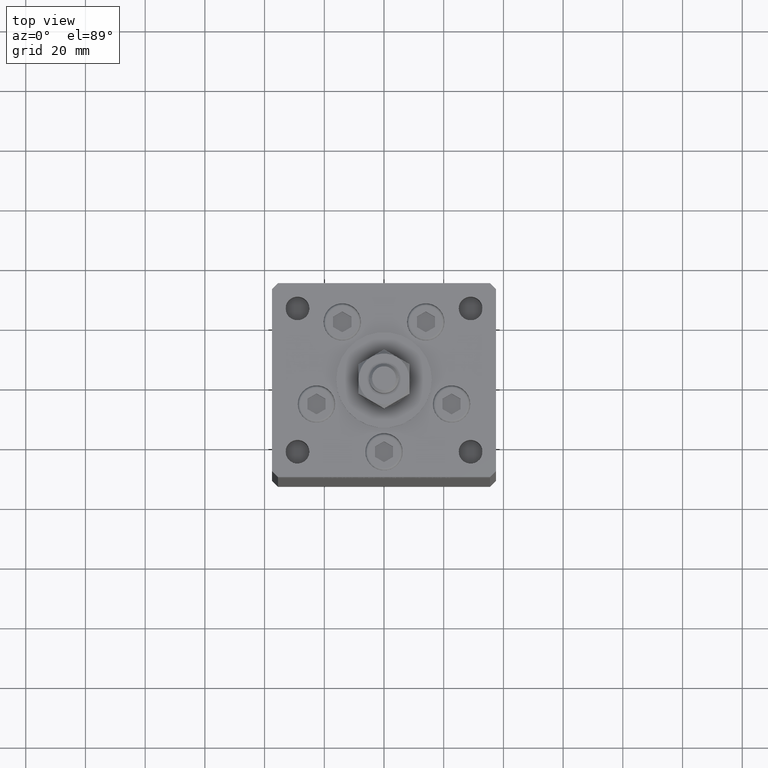
[diagram: clean part render]
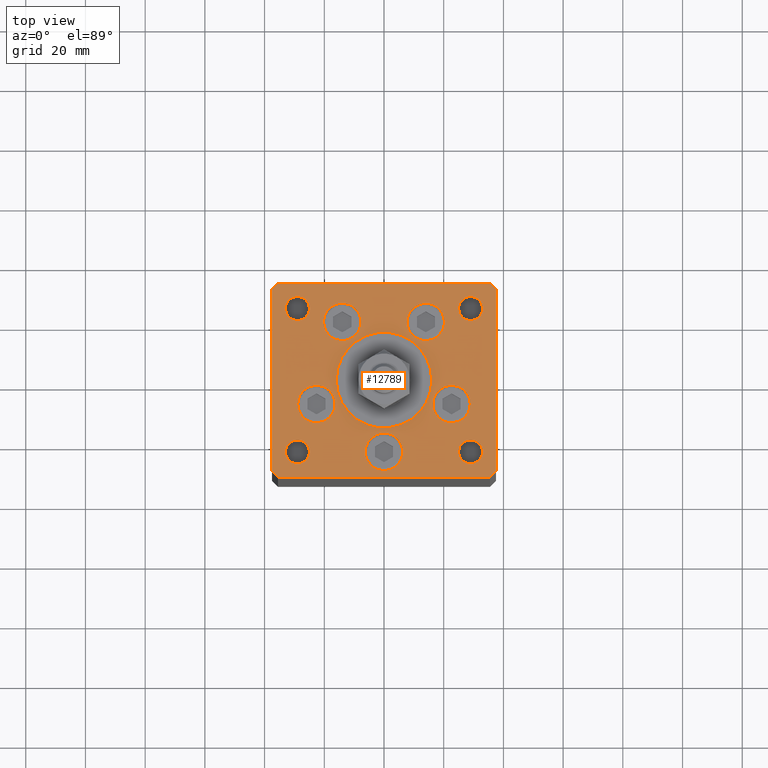
[diagram: same view with one face highlighted and labeled with its STEP entity id]
A machine part, top view. The second image highlights one B-rep face of the part: STEP entity #12789.
In plain terms, the highlighted planar face has unit normal (0, 0, 1).
Its self-contained STEP definition (entity closure, byte-faithful):
#477 = ORIENTED_EDGE ( 'NONE', *, *, #15614, .T. ) ;
#644 = CARTESIAN_POINT ( 'NONE',  ( 29.00000000000000355, -23.99999999999999645, 0.000000000000000000 ) ) ;
#709 = CIRCLE ( 'NONE', #9380, 6.250000000000000000 ) ;
#916 = EDGE_LOOP ( 'NONE', ( #27220, #45393, #52352, #21060, #50911, #1934, #31502, #4570 ) ) ;
#1383 = ORIENTED_EDGE ( 'NONE', *, *, #51516, .F. ) ;
#1488 = CARTESIAN_POINT ( 'NONE',  ( 35.50000000000001421, -32.49999999999992184, 0.000000000000000000 ) ) ;
#1531 = DIRECTION ( 'NONE',  ( 1.000000000000000000, 0.000000000000000000, 0.000000000000000000 ) ) ;
#1616 = FACE_BOUND ( 'NONE', #39297, .T. ) ;
#1625 = EDGE_CURVE ( 'NONE', #39541, #14842, #44907, .T. ) ;
#1753 = VERTEX_POINT ( 'NONE', #22754 ) ;
#1762 = AXIS2_PLACEMENT_3D ( 'NONE', #39886, #3486, #20080 ) ;
#1934 = ORIENTED_EDGE ( 'NONE', *, *, #38334, .T. ) ;
#2633 = CIRCLE ( 'NONE', #16530, 16.00000000000000355 ) ;
#2837 = VERTEX_POINT ( 'NONE', #16743 ) ;
#2878 = DIRECTION ( 'NONE',  ( -1.000000000000000000, -1.954618001100627573E-16, 0.000000000000000000 ) ) ;
#3239 = CARTESIAN_POINT ( 'NONE',  ( 37.50000000000000711, -30.49999999999992895, 0.000000000000000000 ) ) ;
#3459 = CIRCLE ( 'NONE', #16457, 4.000000000000000000 ) ;
#3486 = DIRECTION ( 'NONE',  ( 0.000000000000000000, 0.000000000000000000, 1.000000000000000000 ) ) ;
#3497 = VERTEX_POINT ( 'NONE', #13299 ) ;
#3588 = EDGE_CURVE ( 'NONE', #48855, #32810, #709, .T. ) ;
#3994 = EDGE_CURVE ( 'NONE', #24867, #26089, #4187, .T. ) ;
#4187 = CIRCLE ( 'NONE', #11152, 4.000000000000000000 ) ;
#4210 = DIRECTION ( 'NONE',  ( -1.000000000000000000, 0.000000000000000000, 0.000000000000000000 ) ) ;
#4332 = AXIS2_PLACEMENT_3D ( 'NONE', #28800, #41522, #20903 ) ;
#4570 = ORIENTED_EDGE ( 'NONE', *, *, #34832, .T. ) ;
#4735 = CARTESIAN_POINT ( 'NONE',  ( 0.000000000000000000, -24.00000000000001066, 0.000000000000000000 ) ) ;
#4814 = EDGE_CURVE ( 'NONE', #41388, #30012, #47600, .T. ) ;
#5033 = CARTESIAN_POINT ( 'NONE',  ( -32.99999999999999289, -23.99999999999999645, 0.000000000000000000 ) ) ;
#5168 = FACE_BOUND ( 'NONE', #30020, .T. ) ;
#5811 = AXIS2_PLACEMENT_3D ( 'NONE', #4735, #25141, #13171 ) ;
#5864 = ORIENTED_EDGE ( 'NONE', *, *, #3588, .F. ) ;
#5876 = DIRECTION ( 'NONE',  ( 0.7071067811865512365, -0.7071067811865439090, 0.000000000000000000 ) ) ;
#6084 = VERTEX_POINT ( 'NONE', #43267 ) ;
#6169 = ORIENTED_EDGE ( 'NONE', *, *, #34461, .F. ) ;
#6618 = CARTESIAN_POINT ( 'NONE',  ( 0.000000000000000000, -6.938893903907228378E-15, 0.000000000000000000 ) ) ;
#6695 = EDGE_LOOP ( 'NONE', ( #13708, #36927 ) ) ;
#6815 = EDGE_LOOP ( 'NONE', ( #36155, #18803 ) ) ;
#6982 = AXIS2_PLACEMENT_3D ( 'NONE', #644, #53464, #18050 ) ;
#7039 = CARTESIAN_POINT ( 'NONE',  ( 29.00000000000000355, -23.99999999999999645, 0.000000000000000000 ) ) ;
#7260 = VERTEX_POINT ( 'NONE', #12243 ) ;
#7753 = EDGE_CURVE ( 'NONE', #6084, #17158, #3459, .T. ) ;
#8317 = ORIENTED_EDGE ( 'NONE', *, *, #3994, .F. ) ;
#8576 = VERTEX_POINT ( 'NONE', #9708 ) ;
#8903 = ORIENTED_EDGE ( 'NONE', *, *, #14606, .T. ) ;
#9088 = VERTEX_POINT ( 'NONE', #26691 ) ;
#9348 = CARTESIAN_POINT ( 'NONE',  ( -29.00000000000000000, 24.00000000000000711, 0.000000000000000000 ) ) ;
#9380 = AXIS2_PLACEMENT_3D ( 'NONE', #19571, #36930, #15761 ) ;
#9565 = CIRCLE ( 'NONE', #4332, 6.250000000000000000 ) ;
#9708 = CARTESIAN_POINT ( 'NONE',  ( 33.00000000000000000, -23.99999999999999645, 0.000000000000000000 ) ) ;
#10213 = CARTESIAN_POINT ( 'NONE',  ( 24.99999999999999645, 24.00000000000000355, 0.000000000000000000 ) ) ;
#10957 = DIRECTION ( 'NONE',  ( 1.000000000000000000, 0.000000000000000000, 0.000000000000000000 ) ) ;
#10984 = CARTESIAN_POINT ( 'NONE',  ( -29.00000000000000000, 24.00000000000000711, 0.000000000000000000 ) ) ;
#10985 = VERTEX_POINT ( 'NONE', #13928 ) ;
#10989 = VERTEX_POINT ( 'NONE', #17995 ) ;
#11152 = AXIS2_PLACEMENT_3D ( 'NONE', #19445, #35985, #35722 ) ;
#11256 = DIRECTION ( 'NONE',  ( -0.000000000000000000, -0.000000000000000000, -1.000000000000000000 ) ) ;
#11288 = CARTESIAN_POINT ( 'NONE',  ( 35.50000000000000000, 32.49999999999999289, 0.000000000000000000 ) ) ;
#11369 = VERTEX_POINT ( 'NONE', #53157 ) ;
#11884 = AXIS2_PLACEMENT_3D ( 'NONE', #47975, #30875, #31678 ) ;
#12064 = VERTEX_POINT ( 'NONE', #52155 ) ;
#12237 = DIRECTION ( 'NONE',  ( 1.000000000000000000, 0.000000000000000000, 0.000000000000000000 ) ) ;
#12243 = CARTESIAN_POINT ( 'NONE',  ( -6.250000000000000000, -24.00000000000001066, 0.000000000000000000 ) ) ;
#12654 = AXIS2_PLACEMENT_3D ( 'NONE', #49449, #53513, #12237 ) ;
#12789 = ADVANCED_FACE ( 'NONE', ( #34499, #5168, #30178, #22837, #43470, #46449, #22568, #1616, #51083, #14413, #51358 ), #14147, .T. ) ;
#13171 = DIRECTION ( 'NONE',  ( 1.000000000000000000, 0.000000000000000000, 0.000000000000000000 ) ) ;
#13299 = CARTESIAN_POINT ( 'NONE',  ( 16.00000000000000355, -4.979459025271462852E-15, 0.000000000000000000 ) ) ;
#13339 = DIRECTION ( 'NONE',  ( -0.000000000000000000, 0.000000000000000000, 1.000000000000000000 ) ) ;
#13627 = DIRECTION ( 'NONE',  ( 1.000000000000000000, 0.000000000000000000, 0.000000000000000000 ) ) ;
#13708 = ORIENTED_EDGE ( 'NONE', *, *, #44603, .T. ) ;
#13809 = CIRCLE ( 'NONE', #47592, 6.250000000000001776 ) ;
#13928 = CARTESIAN_POINT ( 'NONE',  ( -37.50000000000000000, -30.50000000000004263, 0.000000000000000000 ) ) ;
#13980 = DIRECTION ( 'NONE',  ( 0.000000000000000000, 0.000000000000000000, 1.000000000000000000 ) ) ;
#14147 = PLANE ( 'NONE',  #43396 ) ;
#14413 = FACE_OUTER_BOUND ( 'NONE', #916, .T. ) ;
#14554 = EDGE_CURVE ( 'NONE', #29159, #3497, #42529, .T. ) ;
#14606 = EDGE_CURVE ( 'NONE', #27234, #8576, #20037, .T. ) ;
#14685 = EDGE_CURVE ( 'NONE', #3497, #29159, #2633, .T. ) ;
#14799 = CARTESIAN_POINT ( 'NONE',  ( -16.37741699796953299, -8.000000000000000000, 0.000000000000000000 ) ) ;
#14842 = VERTEX_POINT ( 'NONE', #53070 ) ;
#14871 = EDGE_CURVE ( 'NONE', #21014, #1753, #26140, .T. ) ;
#15102 = CARTESIAN_POINT ( 'NONE',  ( -25.00000000000000000, 24.00000000000000711, 0.000000000000000000 ) ) ;
#15494 = EDGE_CURVE ( 'NONE', #30012, #41388, #16565, .T. ) ;
#15614 = EDGE_CURVE ( 'NONE', #8576, #27234, #50413, .T. ) ;
#15761 = DIRECTION ( 'NONE',  ( 1.000000000000000000, 0.000000000000000000, 0.000000000000000000 ) ) ;
#16266 = CIRCLE ( 'NONE', #5811, 6.250000000000000000 ) ;
#16319 = DIRECTION ( 'NONE',  ( 0.000000000000000000, 0.000000000000000000, 1.000000000000000000 ) ) ;
#16369 = VECTOR ( 'NONE', #5876, 1000.000000000000000 ) ;
#16457 = AXIS2_PLACEMENT_3D ( 'NONE', #9348, #41419, #4210 ) ;
#16530 = AXIS2_PLACEMENT_3D ( 'NONE', #6618, #13980, #35137 ) ;
#16565 = CIRCLE ( 'NONE', #22655, 6.250000000000000000 ) ;
#16743 = CARTESIAN_POINT ( 'NONE',  ( 16.37741699796953299, -8.000000000000000000, 0.000000000000000000 ) ) ;
#16927 = EDGE_CURVE ( 'NONE', #10989, #2837, #42608, .T. ) ;
#17158 = VERTEX_POINT ( 'NONE', #15102 ) ;
#17228 = LINE ( 'NONE', #22119, #27405 ) ;
#17729 = EDGE_CURVE ( 'NONE', #26089, #24867, #49610, .T. ) ;
#17789 = ORIENTED_EDGE ( 'NONE', *, *, #14554, .F. ) ;
#17995 = CARTESIAN_POINT ( 'NONE',  ( 28.87741699796953654, -8.000000000000000000, 0.000000000000000000 ) ) ;
#18050 = DIRECTION ( 'NONE',  ( -1.000000000000000000, 0.000000000000000000, 0.000000000000000000 ) ) ;
#18335 = ORIENTED_EDGE ( 'NONE', *, *, #37959, .F. ) ;
#18373 = DIRECTION ( 'NONE',  ( 0.000000000000000000, 0.000000000000000000, 1.000000000000000000 ) ) ;
#18535 = EDGE_LOOP ( 'NONE', ( #18335, #6169 ) ) ;
#18737 = CIRCLE ( 'NONE', #12654, 6.250000000000000000 ) ;
#18803 = ORIENTED_EDGE ( 'NONE', *, *, #36975, .F. ) ;
#18850 = ORIENTED_EDGE ( 'NONE', *, *, #15494, .F. ) ;
#19043 = CARTESIAN_POINT ( 'NONE',  ( -16.00000000000000355, -6.938893903907228378E-15, 0.000000000000000000 ) ) ;
#19445 = CARTESIAN_POINT ( 'NONE',  ( 29.00000000000000000, 24.00000000000000355, 0.000000000000000000 ) ) ;
#19495 = EDGE_CURVE ( 'NONE', #14842, #39541, #30605, .T. ) ;
#19571 = CARTESIAN_POINT ( 'NONE',  ( -13.99106857963324124, 19.50000000000000000, 0.000000000000000000 ) ) ;
#19735 = LINE ( 'NONE', #36013, #48333 ) ;
#19917 = DIRECTION ( 'NONE',  ( 0.000000000000000000, 0.000000000000000000, 1.000000000000000000 ) ) ;
#20037 = CIRCLE ( 'NONE', #6982, 4.000000000000000000 ) ;
#20080 = DIRECTION ( 'NONE',  ( 1.000000000000000000, 0.000000000000000000, 0.000000000000000000 ) ) ;
#20277 = ORIENTED_EDGE ( 'NONE', *, *, #16927, .F. ) ;
#20301 = VECTOR ( 'NONE', #36377, 1000.000000000000000 ) ;
#20528 = CIRCLE ( 'NONE', #51764, 3.999999999999996447 ) ;
#20867 = DIRECTION ( 'NONE',  ( -0.7071067811865524577, 0.7071067811865426878, 0.000000000000000000 ) ) ;
#20903 = DIRECTION ( 'NONE',  ( 1.000000000000000000, 0.000000000000000000, 0.000000000000000000 ) ) ;
#21014 = VERTEX_POINT ( 'NONE', #32300 ) ;
#21060 = ORIENTED_EDGE ( 'NONE', *, *, #22373, .T. ) ;
#21489 = AXIS2_PLACEMENT_3D ( 'NONE', #33611, #51274, #1531 ) ;
#21801 = AXIS2_PLACEMENT_3D ( 'NONE', #7039, #44515, #35555 ) ;
#22119 = CARTESIAN_POINT ( 'NONE',  ( -37.50000000000001421, 30.50000000000000000, 0.000000000000000000 ) ) ;
#22373 = EDGE_CURVE ( 'NONE', #12064, #24038, #40446, .T. ) ;
#22492 = ORIENTED_EDGE ( 'NONE', *, *, #19495, .F. ) ;
#22497 = CIRCLE ( 'NONE', #44199, 4.000000000000000000 ) ;
#22568 = FACE_BOUND ( 'NONE', #6695, .T. ) ;
#22655 = AXIS2_PLACEMENT_3D ( 'NONE', #51057, #26356, #39354 ) ;
#22754 = CARTESIAN_POINT ( 'NONE',  ( 35.50000000000001421, -32.49999999999992184, 0.000000000000000000 ) ) ;
#22837 = FACE_BOUND ( 'NONE', #32254, .T. ) ;
#22984 = DIRECTION ( 'NONE',  ( 0.000000000000000000, 0.000000000000000000, 1.000000000000000000 ) ) ;
#23329 = AXIS2_PLACEMENT_3D ( 'NONE', #41735, #22984, #34921 ) ;
#23989 = CARTESIAN_POINT ( 'NONE',  ( -35.50000000000000711, 32.49999999999997868, 0.000000000000000000 ) ) ;
#24038 = VERTEX_POINT ( 'NONE', #47525 ) ;
#24867 = VERTEX_POINT ( 'NONE', #10213 ) ;
#25074 = CARTESIAN_POINT ( 'NONE',  ( -35.50000000000001421, -32.50000000000000711, 0.000000000000000000 ) ) ;
#25141 = DIRECTION ( 'NONE',  ( 0.000000000000000000, 0.000000000000000000, 1.000000000000000000 ) ) ;
#25813 = VERTEX_POINT ( 'NONE', #30006 ) ;
#25831 = CARTESIAN_POINT ( 'NONE',  ( 0.000000000000000000, 0.000000000000000000, 0.000000000000000000 ) ) ;
#25885 = VERTEX_POINT ( 'NONE', #31085 ) ;
#26089 = VERTEX_POINT ( 'NONE', #42413 ) ;
#26140 = LINE ( 'NONE', #25074, #37327 ) ;
#26356 = DIRECTION ( 'NONE',  ( 0.000000000000000000, 0.000000000000000000, 1.000000000000000000 ) ) ;
#26381 = DIRECTION ( 'NONE',  ( 1.000000000000000000, 0.000000000000000000, 0.000000000000000000 ) ) ;
#26691 = CARTESIAN_POINT ( 'NONE',  ( 6.250000000000000000, -24.00000000000001066, 0.000000000000000000 ) ) ;
#27062 = LINE ( 'NONE', #1488, #29222 ) ;
#27220 = ORIENTED_EDGE ( 'NONE', *, *, #41824, .T. ) ;
#27234 = VERTEX_POINT ( 'NONE', #32270 ) ;
#27405 = VECTOR ( 'NONE', #34589, 1000.000000000000000 ) ;
#27508 = VERTEX_POINT ( 'NONE', #11288 ) ;
#28033 = LINE ( 'NONE', #52187, #28525 ) ;
#28525 = VECTOR ( 'NONE', #20867, 1000.000000000000000 ) ;
#28800 = CARTESIAN_POINT ( 'NONE',  ( -13.99106857963324124, 19.50000000000000000, 0.000000000000000000 ) ) ;
#29159 = VERTEX_POINT ( 'NONE', #19043 ) ;
#29222 = VECTOR ( 'NONE', #39516, 1000.000000000000000 ) ;
#30006 = CARTESIAN_POINT ( 'NONE',  ( -35.50000000000000711, 32.49999999999997868, 0.000000000000000000 ) ) ;
#30012 = VERTEX_POINT ( 'NONE', #46822 ) ;
#30020 = EDGE_LOOP ( 'NONE', ( #1383, #5864 ) ) ;
#30178 = FACE_BOUND ( 'NONE', #36337, .T. ) ;
#30605 = CIRCLE ( 'NONE', #41026, 6.250000000000001776 ) ;
#30875 = DIRECTION ( 'NONE',  ( 0.000000000000000000, 0.000000000000000000, 1.000000000000000000 ) ) ;
#31085 = CARTESIAN_POINT ( 'NONE',  ( -25.00000000000000355, -23.99999999999999645, 0.000000000000000000 ) ) ;
#31264 = VECTOR ( 'NONE', #52484, 1000.000000000000000 ) ;
#31412 = CARTESIAN_POINT ( 'NONE',  ( 22.62741699796953299, -8.000000000000000000, 0.000000000000000000 ) ) ;
#31502 = ORIENTED_EDGE ( 'NONE', *, *, #52034, .T. ) ;
#31604 = CARTESIAN_POINT ( 'NONE',  ( -22.62741699796953299, -8.000000000000000000, 0.000000000000000000 ) ) ;
#31678 = DIRECTION ( 'NONE',  ( 1.000000000000000000, 0.000000000000000000, 0.000000000000000000 ) ) ;
#32254 = EDGE_LOOP ( 'NONE', ( #20277, #44025 ) ) ;
#32270 = CARTESIAN_POINT ( 'NONE',  ( 25.00000000000000355, -23.99999999999999645, 0.000000000000000000 ) ) ;
#32300 = CARTESIAN_POINT ( 'NONE',  ( -35.50000000000001421, -32.50000000000000711, 0.000000000000000000 ) ) ;
#32810 = VERTEX_POINT ( 'NONE', #51419 ) ;
#33059 = EDGE_CURVE ( 'NONE', #1753, #12064, #27062, .T. ) ;
#33096 = EDGE_LOOP ( 'NONE', ( #477, #8903 ) ) ;
#33611 = CARTESIAN_POINT ( 'NONE',  ( -22.62741699796953299, -8.000000000000000000, 0.000000000000000000 ) ) ;
#34126 = EDGE_LOOP ( 'NONE', ( #17789, #52408 ) ) ;
#34135 = LINE ( 'NONE', #38202, #16369 ) ;
#34461 = EDGE_CURVE ( 'NONE', #7260, #9088, #18737, .T. ) ;
#34499 = FACE_BOUND ( 'NONE', #34126, .T. ) ;
#34589 = DIRECTION ( 'NONE',  ( 2.275047181608926165E-16, -1.000000000000000000, 0.000000000000000000 ) ) ;
#34832 = EDGE_CURVE ( 'NONE', #11369, #10985, #17228, .T. ) ;
#34921 = DIRECTION ( 'NONE',  ( 1.000000000000000000, 0.000000000000000000, 0.000000000000000000 ) ) ;
#34926 = DIRECTION ( 'NONE',  ( 1.000000000000000000, 0.000000000000000000, 0.000000000000000000 ) ) ;
#35137 = DIRECTION ( 'NONE',  ( 1.000000000000000000, 0.000000000000000000, 0.000000000000000000 ) ) ;
#35555 = DIRECTION ( 'NONE',  ( -1.000000000000000000, 0.000000000000000000, 0.000000000000000000 ) ) ;
#35722 = DIRECTION ( 'NONE',  ( 1.000000000000000000, 0.000000000000000000, 0.000000000000000000 ) ) ;
#35985 = DIRECTION ( 'NONE',  ( 0.000000000000000000, 0.000000000000000000, 1.000000000000000000 ) ) ;
#36013 = CARTESIAN_POINT ( 'NONE',  ( 35.50000000000000000, 32.49999999999999289, 0.000000000000000000 ) ) ;
#36155 = ORIENTED_EDGE ( 'NONE', *, *, #36598, .F. ) ;
#36337 = EDGE_LOOP ( 'NONE', ( #18850, #51453 ) ) ;
#36377 = DIRECTION ( 'NONE',  ( 0.000000000000000000, 1.000000000000000000, 0.000000000000000000 ) ) ;
#36598 = EDGE_CURVE ( 'NONE', #25885, #51918, #20528, .T. ) ;
#36769 = DIRECTION ( 'NONE',  ( -1.000000000000000000, 0.000000000000000000, 0.000000000000000000 ) ) ;
#36927 = ORIENTED_EDGE ( 'NONE', *, *, #7753, .T. ) ;
#36930 = DIRECTION ( 'NONE',  ( 0.000000000000000000, 0.000000000000000000, 1.000000000000000000 ) ) ;
#36975 = EDGE_CURVE ( 'NONE', #51918, #25885, #45663, .T. ) ;
#37327 = VECTOR ( 'NONE', #41890, 1000.000000000000000 ) ;
#37959 = EDGE_CURVE ( 'NONE', #9088, #7260, #16266, .T. ) ;
#38202 = CARTESIAN_POINT ( 'NONE',  ( -37.50000000000000000, -30.50000000000004263, 0.000000000000000000 ) ) ;
#38334 = EDGE_CURVE ( 'NONE', #27508, #25813, #19735, .T. ) ;
#38785 = DIRECTION ( 'NONE',  ( 1.000000000000000000, 0.000000000000000000, 0.000000000000000000 ) ) ;
#39297 = EDGE_LOOP ( 'NONE', ( #52331, #8317 ) ) ;
#39354 = DIRECTION ( 'NONE',  ( 1.000000000000000000, 0.000000000000000000, 0.000000000000000000 ) ) ;
#39516 = DIRECTION ( 'NONE',  ( 0.7071067811865463515, 0.7071067811865487940, 0.000000000000000000 ) ) ;
#39541 = VERTEX_POINT ( 'NONE', #14799 ) ;
#39886 = CARTESIAN_POINT ( 'NONE',  ( 0.000000000000000000, -6.938893903907228378E-15, 0.000000000000000000 ) ) ;
#40446 = LINE ( 'NONE', #3239, #20301 ) ;
#41026 = AXIS2_PLACEMENT_3D ( 'NONE', #31604, #19917, #10957 ) ;
#41034 = CARTESIAN_POINT ( 'NONE',  ( 22.62741699796953299, -8.000000000000000000, 0.000000000000000000 ) ) ;
#41388 = VERTEX_POINT ( 'NONE', #52788 ) ;
#41419 = DIRECTION ( 'NONE',  ( -0.000000000000000000, -0.000000000000000000, -1.000000000000000000 ) ) ;
#41522 = DIRECTION ( 'NONE',  ( 0.000000000000000000, 0.000000000000000000, 1.000000000000000000 ) ) ;
#41686 = EDGE_CURVE ( 'NONE', #24038, #27508, #28033, .T. ) ;
#41735 = CARTESIAN_POINT ( 'NONE',  ( 13.99106857963324124, 19.50000000000000000, 0.000000000000000000 ) ) ;
#41824 = EDGE_CURVE ( 'NONE', #10985, #21014, #34135, .T. ) ;
#41890 = DIRECTION ( 'NONE',  ( 1.000000000000000000, 1.172770800660376149E-15, 0.000000000000000000 ) ) ;
#42335 = DIRECTION ( 'NONE',  ( 0.000000000000000000, 0.000000000000000000, 1.000000000000000000 ) ) ;
#42413 = CARTESIAN_POINT ( 'NONE',  ( 33.00000000000000000, 24.00000000000000355, 0.000000000000000000 ) ) ;
#42529 = CIRCLE ( 'NONE', #1762, 16.00000000000000355 ) ;
#42608 = CIRCLE ( 'NONE', #44349, 6.250000000000001776 ) ;
#43267 = CARTESIAN_POINT ( 'NONE',  ( -33.00000000000000000, 24.00000000000000711, 0.000000000000000000 ) ) ;
#43396 = AXIS2_PLACEMENT_3D ( 'NONE', #25831, #13339, #26381 ) ;
#43470 = FACE_BOUND ( 'NONE', #18535, .T. ) ;
#43781 = EDGE_CURVE ( 'NONE', #2837, #10989, #13809, .T. ) ;
#44025 = ORIENTED_EDGE ( 'NONE', *, *, #43781, .F. ) ;
#44199 = AXIS2_PLACEMENT_3D ( 'NONE', #10984, #11256, #36769 ) ;
#44349 = AXIS2_PLACEMENT_3D ( 'NONE', #31412, #18373, #34926 ) ;
#44515 = DIRECTION ( 'NONE',  ( -0.000000000000000000, -0.000000000000000000, -1.000000000000000000 ) ) ;
#44603 = EDGE_CURVE ( 'NONE', #17158, #6084, #22497, .T. ) ;
#44907 = CIRCLE ( 'NONE', #21489, 6.250000000000001776 ) ;
#45366 = DIRECTION ( 'NONE',  ( 1.000000000000000000, 0.000000000000000000, 0.000000000000000000 ) ) ;
#45393 = ORIENTED_EDGE ( 'NONE', *, *, #14871, .T. ) ;
#45663 = CIRCLE ( 'NONE', #11884, 3.999999999999996447 ) ;
#46449 = FACE_BOUND ( 'NONE', #48845, .T. ) ;
#46471 = CARTESIAN_POINT ( 'NONE',  ( 29.00000000000000000, 24.00000000000000355, 0.000000000000000000 ) ) ;
#46822 = CARTESIAN_POINT ( 'NONE',  ( 20.24106857963324302, 19.50000000000000000, 0.000000000000000000 ) ) ;
#47277 = DIRECTION ( 'NONE',  ( 0.000000000000000000, 0.000000000000000000, 1.000000000000000000 ) ) ;
#47525 = CARTESIAN_POINT ( 'NONE',  ( 37.50000000000000711, 30.50000000000001421, 0.000000000000000000 ) ) ;
#47592 = AXIS2_PLACEMENT_3D ( 'NONE', #41034, #16319, #45366 ) ;
#47600 = CIRCLE ( 'NONE', #23329, 6.250000000000000000 ) ;
#47975 = CARTESIAN_POINT ( 'NONE',  ( -29.00000000000000000, -23.99999999999999645, 0.000000000000000000 ) ) ;
#48333 = VECTOR ( 'NONE', #2878, 1000.000000000000000 ) ;
#48845 = EDGE_LOOP ( 'NONE', ( #53119, #22492 ) ) ;
#48855 = VERTEX_POINT ( 'NONE', #50001 ) ;
#49449 = CARTESIAN_POINT ( 'NONE',  ( 0.000000000000000000, -24.00000000000001066, 0.000000000000000000 ) ) ;
#49610 = CIRCLE ( 'NONE', #52227, 4.000000000000000000 ) ;
#49776 = CARTESIAN_POINT ( 'NONE',  ( -29.00000000000000000, -23.99999999999999645, 0.000000000000000000 ) ) ;
#50001 = CARTESIAN_POINT ( 'NONE',  ( -20.24106857963324302, 19.50000000000000000, 0.000000000000000000 ) ) ;
#50413 = CIRCLE ( 'NONE', #21801, 4.000000000000000000 ) ;
#50911 = ORIENTED_EDGE ( 'NONE', *, *, #41686, .T. ) ;
#51057 = CARTESIAN_POINT ( 'NONE',  ( 13.99106857963324124, 19.50000000000000000, 0.000000000000000000 ) ) ;
#51083 = FACE_BOUND ( 'NONE', #6815, .T. ) ;
#51274 = DIRECTION ( 'NONE',  ( 0.000000000000000000, 0.000000000000000000, 1.000000000000000000 ) ) ;
#51358 = FACE_BOUND ( 'NONE', #33096, .T. ) ;
#51419 = CARTESIAN_POINT ( 'NONE',  ( -7.741068579633241242, 19.50000000000000000, 0.000000000000000000 ) ) ;
#51453 = ORIENTED_EDGE ( 'NONE', *, *, #4814, .F. ) ;
#51516 = EDGE_CURVE ( 'NONE', #32810, #48855, #9565, .T. ) ;
#51764 = AXIS2_PLACEMENT_3D ( 'NONE', #49776, #42335, #38785 ) ;
#51918 = VERTEX_POINT ( 'NONE', #5033 ) ;
#51947 = LINE ( 'NONE', #23989, #31264 ) ;
#52034 = EDGE_CURVE ( 'NONE', #25813, #11369, #51947, .T. ) ;
#52155 = CARTESIAN_POINT ( 'NONE',  ( 37.50000000000000711, -30.49999999999992895, 0.000000000000000000 ) ) ;
#52187 = CARTESIAN_POINT ( 'NONE',  ( 37.50000000000000711, 30.50000000000001421, 0.000000000000000000 ) ) ;
#52227 = AXIS2_PLACEMENT_3D ( 'NONE', #46471, #47277, #13627 ) ;
#52331 = ORIENTED_EDGE ( 'NONE', *, *, #17729, .F. ) ;
#52352 = ORIENTED_EDGE ( 'NONE', *, *, #33059, .T. ) ;
#52408 = ORIENTED_EDGE ( 'NONE', *, *, #14685, .F. ) ;
#52484 = DIRECTION ( 'NONE',  ( -0.7071067811865524577, -0.7071067811865426878, 0.000000000000000000 ) ) ;
#52788 = CARTESIAN_POINT ( 'NONE',  ( 7.741068579633241242, 19.50000000000000000, 0.000000000000000000 ) ) ;
#53070 = CARTESIAN_POINT ( 'NONE',  ( -28.87741699796953654, -8.000000000000000000, 0.000000000000000000 ) ) ;
#53119 = ORIENTED_EDGE ( 'NONE', *, *, #1625, .F. ) ;
#53157 = CARTESIAN_POINT ( 'NONE',  ( -37.50000000000001421, 30.50000000000000000, 0.000000000000000000 ) ) ;
#53464 = DIRECTION ( 'NONE',  ( -0.000000000000000000, -0.000000000000000000, -1.000000000000000000 ) ) ;
#53513 = DIRECTION ( 'NONE',  ( 0.000000000000000000, 0.000000000000000000, 1.000000000000000000 ) ) ;